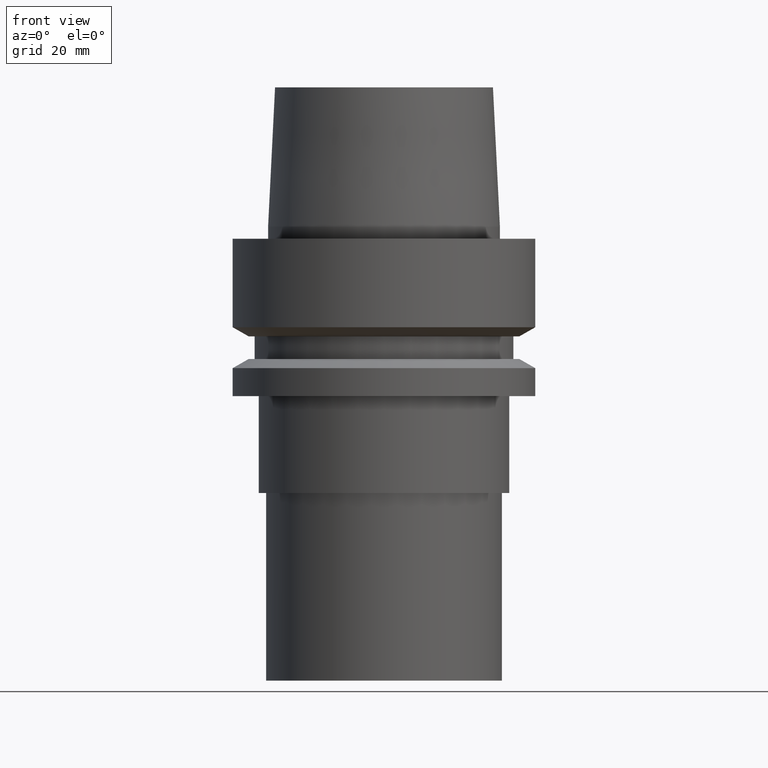
[diagram: clean part render]
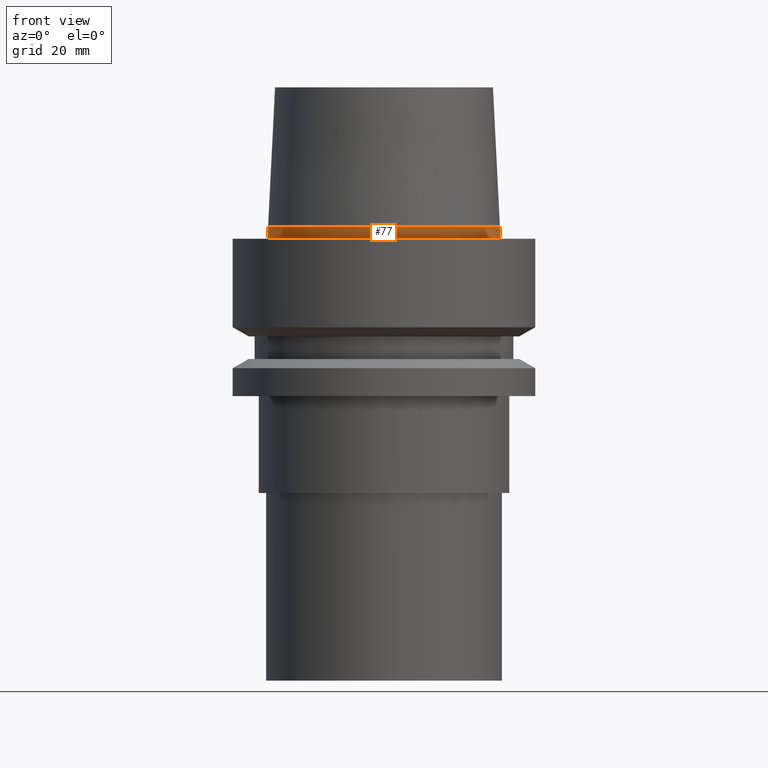
[diagram: same view with one face highlighted and labeled with its STEP entity id]
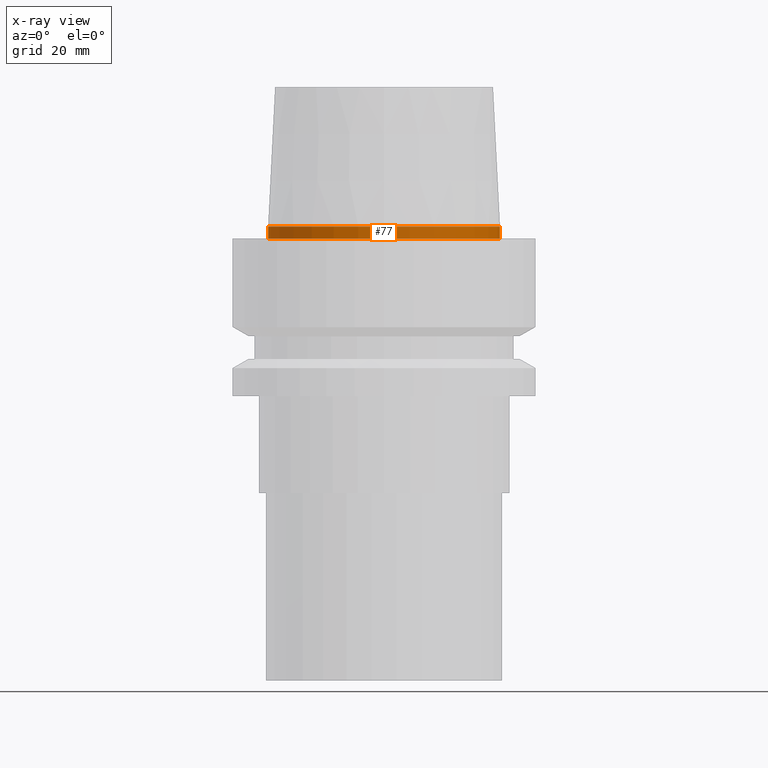
[diagram: x-ray of the same camera — body ghosted, the highlighted face saturated]
A machine part, front view. The second image highlights one B-rep face of the part: STEP entity #77.
The next image is the same camera in x-ray: the body ghosted, the highlighted face saturated — about 0% of this face is hidden behind the body in this view.
In plain terms, the highlighted cylindrical surface (bore or boss wall) has radius 19.15 mm, axis along (-0, -0, 1).
Its self-contained STEP definition (entity closure, byte-faithful):
#77=ADVANCED_FACE('',(#97,#98),#99,.T.);
#97=FACE_BOUND('',#143,.T.);
#98=FACE_BOUND('',#144,.T.);
#99=CYLINDRICAL_SURFACE('',#145,19.15);
#143=EDGE_LOOP('',(#193));
#144=EDGE_LOOP('',(#194));
#145=AXIS2_PLACEMENT_3D('',#195,#196,#197);
#193=ORIENTED_EDGE('',*,*,#264,.F.);
#194=ORIENTED_EDGE('',*,*,#263,.T.);
#195=CARTESIAN_POINT('',(-6.12323399573677E-017,-1.22464679914735E-016,1.0));
#196=DIRECTION('',(-6.12323399573677E-017,-1.22464679914735E-016,1.0));
#197=DIRECTION('',(-1.23259516440783E-032,1.0,1.22464679914735E-016));
#263=EDGE_CURVE('',#279,#279,#280,.T.);
#264=EDGE_CURVE('',#281,#281,#282,.T.);
#279=VERTEX_POINT('',#309);
#280=CIRCLE('',#310,19.15);
#281=VERTEX_POINT('',#311);
#282=CIRCLE('',#312,19.15);
#309=CARTESIAN_POINT('',(-1.22464679914736E-016,19.15,2.0));
#310=AXIS2_PLACEMENT_3D('',#340,#341,#342);
#311=CARTESIAN_POINT('',(-2.360419739841E-031,19.15,2.34519862036718E-015));
#312=AXIS2_PLACEMENT_3D('',#343,#344,#345);
#340=CARTESIAN_POINT('',(-1.22464679914735E-016,-2.44929359829471E-016,2.0));
#341=DIRECTION('',(6.12323399573677E-017,1.22464679914735E-016,-1.0));
#342=DIRECTION('',(-1.23259516440783E-032,1.0,1.22464679914735E-016));
#343=CARTESIAN_POINT('',(0.0,0.0,0.0));
#344=DIRECTION('',(6.12323399573677E-017,1.22464679914735E-016,-1.0));
#345=DIRECTION('',(-1.23259516440783E-032,1.0,1.22464679914735E-016));